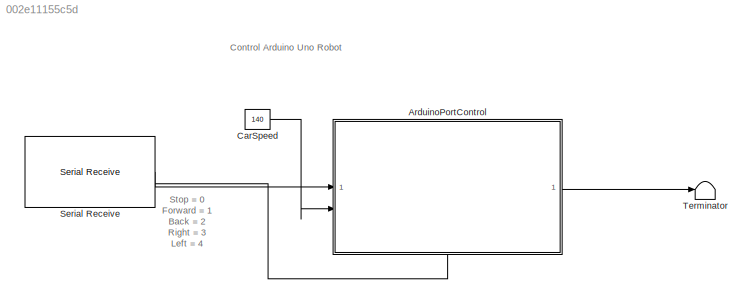
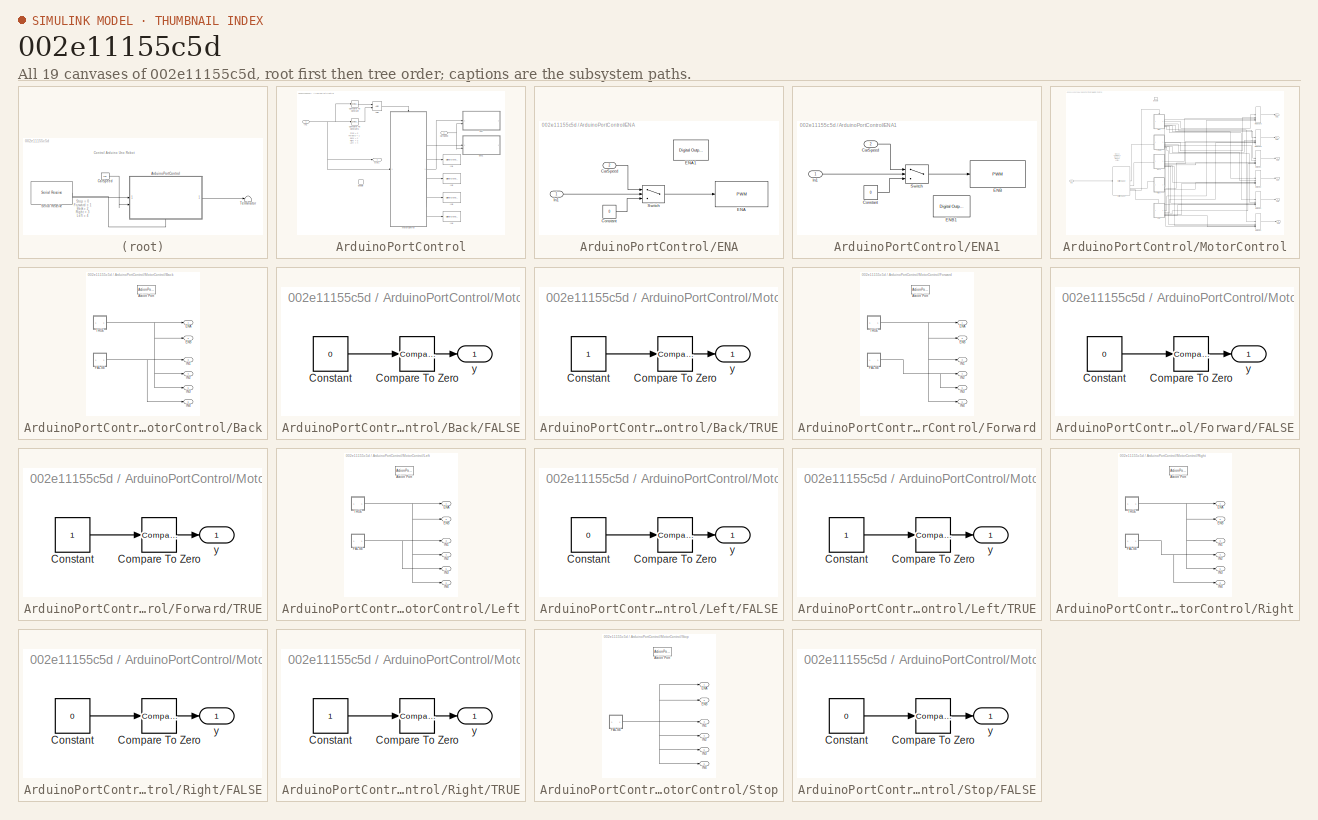
[diagram: thumbnail index - all 19 canvases of the model, root first then tree order]
MODEL slx_002e11155c5d
KIND model
CONFIG AbsTol = auto
CONFIG EnableMultiTasking = on
CONFIG FixedStep = auto
CONFIG MaxStep = auto
CONFIG MinStep = auto
CONFIG RelTol = 1e-3
CONFIG SampleTimeConstraint = Unconstrained
CONFIG SolverName = ode45
CONFIG StartTime = 0.0
CONFIG StopTime = 10.0
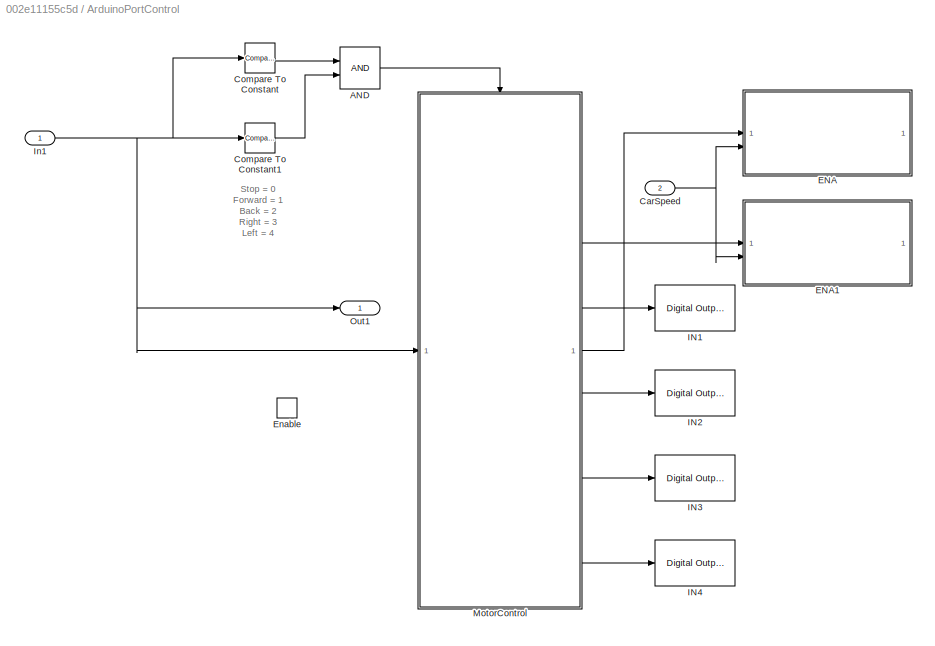
BLOCK [SubSystem] ArduinoPortControl
  NameLocation = top
BLOCK [Logic] ArduinoPortControl/AND
  AllPortsSameDT = off
  IconShape = distinctive
  OutDataTypeStr = boolean
BLOCK [Inport] ArduinoPortControl/CarSpeed
  Port = 2
BLOCK [Reference] ArduinoPortControl/Compare To Constant  REF=simulink/Logic and Bit
Operations/Compare
To Constant
  SourceBlock = simulink/Logic and Bit\nOperations/Compare\nTo Constant
  SourceType = Compare To Constant
BLOCK [Reference] ArduinoPortControl/Compare To Constant1  REF=simulink/Logic and Bit
Operations/Compare
To Constant
  SourceBlock = simulink/Logic and Bit\nOperations/Compare\nTo Constant
  SourceType = Compare To Constant
BLOCK [SubSystem] ArduinoPortControl/ENA
  TreatAsAtomicUnit = on
BLOCK [Inport] ArduinoPortControl/ENA/CarSpeed
  Port = 2
BLOCK [Constant] ArduinoPortControl/ENA/Constant
  Value = 0
BLOCK [Reference] ArduinoPortControl/ENA/ENA  REF=arduinolib/PWM
  SourceBlock = arduinolib/PWM
  SourceType = Arduino PWM
BLOCK [Reference] ArduinoPortControl/ENA/ENA1  REF=arduinolib/Digital Output
  Commented = on
  SourceBlock = arduinolib/Digital Output
  SourceType = Arduino Digital Output
BLOCK [Inport] ArduinoPortControl/ENA/In1
BLOCK [Switch] ArduinoPortControl/ENA/Switch
  Criteria = u2 > Threshold
  InputSameDT = off
  SaturateOnIntegerOverflow = off
BLOCK [SubSystem] ArduinoPortControl/ENA1
  TreatAsAtomicUnit = on
BLOCK [Inport] ArduinoPortControl/ENA1/CarSpeed
  Port = 2
BLOCK [Constant] ArduinoPortControl/ENA1/Constant
  Value = 0
BLOCK [Reference] ArduinoPortControl/ENA1/ENB  REF=arduinolib/PWM
  SourceBlock = arduinolib/PWM
  SourceType = Arduino PWM
BLOCK [Reference] ArduinoPortControl/ENA1/ENB1  REF=arduinolib/Digital Output
  Commented = on
  SourceBlock = arduinolib/Digital Output
  SourceType = Arduino Digital Output
BLOCK [Inport] ArduinoPortControl/ENA1/In1
BLOCK [Switch] ArduinoPortControl/ENA1/Switch
  Criteria = u2 > Threshold
  InputSameDT = off
  SaturateOnIntegerOverflow = off
BLOCK [EnablePort] ArduinoPortControl/Enable
BLOCK [Reference] ArduinoPortControl/IN1  REF=arduinolib/Digital Output
  SourceBlock = arduinolib/Digital Output
  SourceType = Arduino Digital Output
BLOCK [Reference] ArduinoPortControl/IN2  REF=arduinolib/Digital Output
  SourceBlock = arduinolib/Digital Output
  SourceType = Arduino Digital Output
BLOCK [Reference] ArduinoPortControl/IN3  REF=arduinolib/Digital Output
  SourceBlock = arduinolib/Digital Output
  SourceType = Arduino Digital Output
BLOCK [Reference] ArduinoPortControl/IN4  REF=arduinolib/Digital Output
  SourceBlock = arduinolib/Digital Output
  SourceType = Arduino Digital Output
BLOCK [Inport] ArduinoPortControl/In1
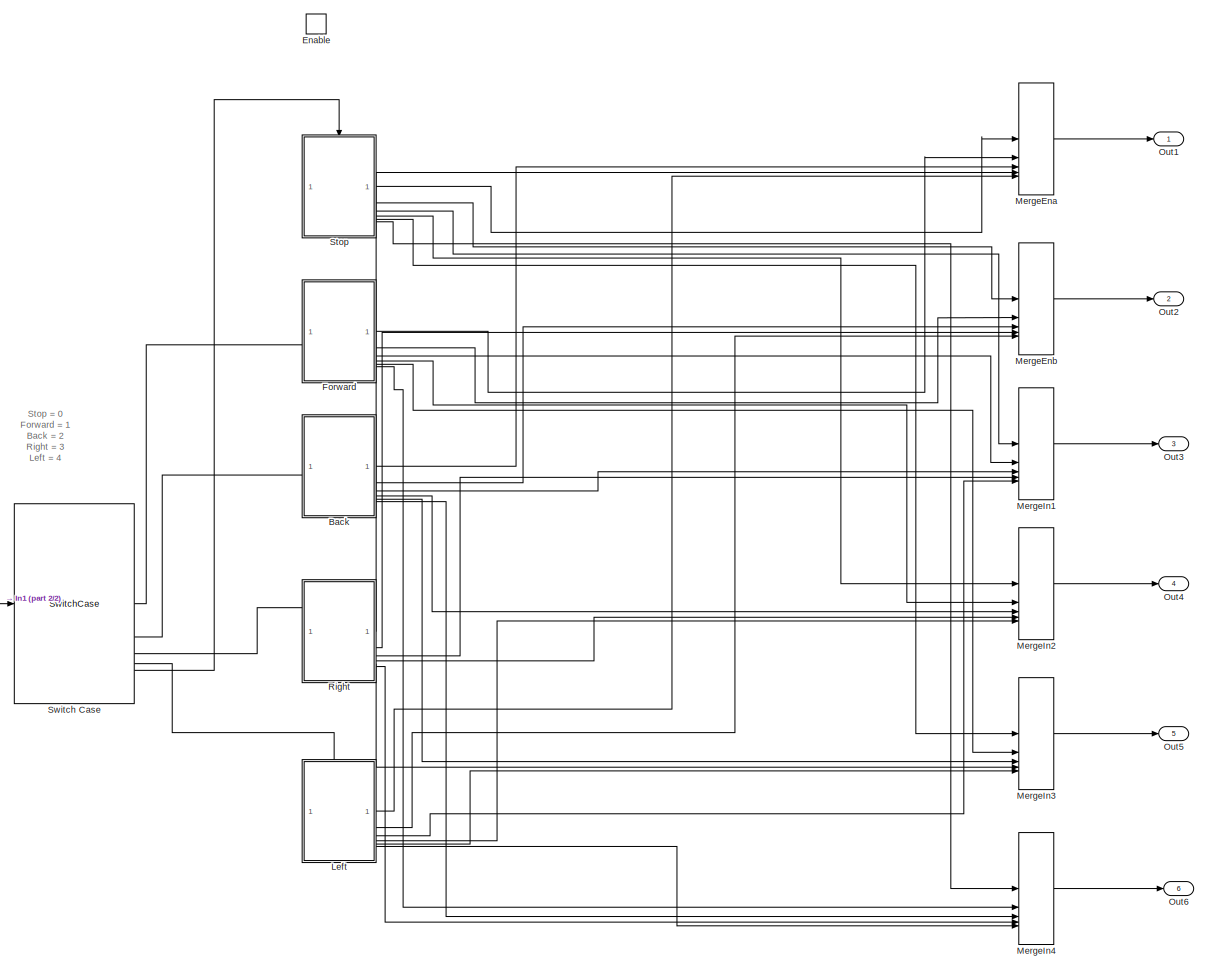
[diagram: ArduinoPortControl/MotorControl - part 1/2, most of the canvas]
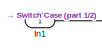
[diagram: ArduinoPortControl/MotorControl - part 2/2, middle left region]
BLOCK [SubSystem] ArduinoPortControl/MotorControl
BLOCK [SubSystem] ArduinoPortControl/MotorControl/Back
BLOCK [ActionPort] ArduinoPortControl/MotorControl/Back/Action Port
  ActionPortLabel = case [ 2 ]:
BLOCK [Outport] ArduinoPortControl/MotorControl/Back/ENA
BLOCK [Outport] ArduinoPortControl/MotorControl/Back/ENB
  Port = 2
BLOCK [SubSystem] ArduinoPortControl/MotorControl/Back/FALSE
BLOCK [Reference] ArduinoPortControl/MotorControl/Back/FALSE/Compare To Zero  REF=simulink/Logic and Bit
Operations/Compare
To Zero
  SourceBlock = simulink/Logic and Bit\nOperations/Compare\nTo Zero
  SourceType = Compare To Zero
BLOCK [Constant] ArduinoPortControl/MotorControl/Back/FALSE/Constant
  Value = 0
BLOCK [Outport] ArduinoPortControl/MotorControl/Back/FALSE/y
BLOCK [Outport] ArduinoPortControl/MotorControl/Back/IN1
  Port = 3
BLOCK [Outport] ArduinoPortControl/MotorControl/Back/IN2
  Port = 4
BLOCK [Outport] ArduinoPortControl/MotorControl/Back/IN3
  Port = 5
BLOCK [Outport] ArduinoPortControl/MotorControl/Back/IN4
  Port = 6
BLOCK [SubSystem] ArduinoPortControl/MotorControl/Back/TRUE
BLOCK [Reference] ArduinoPortControl/MotorControl/Back/TRUE/Compare To Zero  REF=simulink/Logic and Bit
Operations/Compare
To Zero
  SourceBlock = simulink/Logic and Bit\nOperations/Compare\nTo Zero
  SourceType = Compare To Zero
BLOCK [Constant] ArduinoPortControl/MotorControl/Back/TRUE/Constant
BLOCK [Outport] ArduinoPortControl/MotorControl/Back/TRUE/y
BLOCK [EnablePort] ArduinoPortControl/MotorControl/Enable
BLOCK [SubSystem] ArduinoPortControl/MotorControl/Forward
BLOCK [ActionPort] ArduinoPortControl/MotorControl/Forward/Action Port
  ActionPortLabel = case [ 1 ]:
BLOCK [Outport] ArduinoPortControl/MotorControl/Forward/ENA
BLOCK [Outport] ArduinoPortControl/MotorControl/Forward/ENB
  Port = 2
BLOCK [SubSystem] ArduinoPortControl/MotorControl/Forward/FALSE
BLOCK [Reference] ArduinoPortControl/MotorControl/Forward/FALSE/Compare To Zero  REF=simulink/Logic and Bit
Operations/Compare
To Zero
  SourceBlock = simulink/Logic and Bit\nOperations/Compare\nTo Zero
  SourceType = Compare To Zero
BLOCK [Constant] ArduinoPortControl/MotorControl/Forward/FALSE/Constant
  Value = 0
BLOCK [Outport] ArduinoPortControl/MotorControl/Forward/FALSE/y
BLOCK [Outport] ArduinoPortControl/MotorControl/Forward/IN1
  Port = 3
BLOCK [Outport] ArduinoPortControl/MotorControl/Forward/IN2
  Port = 4
BLOCK [Outport] ArduinoPortControl/MotorControl/Forward/IN3
  Port = 5
BLOCK [Outport] ArduinoPortControl/MotorControl/Forward/IN4
  Port = 6
BLOCK [SubSystem] ArduinoPortControl/MotorControl/Forward/TRUE
BLOCK [Reference] ArduinoPortControl/MotorControl/Forward/TRUE/Compare To Zero  REF=simulink/Logic and Bit
Operations/Compare
To Zero
  SourceBlock = simulink/Logic and Bit\nOperations/Compare\nTo Zero
  SourceType = Compare To Zero
BLOCK [Constant] ArduinoPortControl/MotorControl/Forward/TRUE/Constant
BLOCK [Outport] ArduinoPortControl/MotorControl/Forward/TRUE/y
BLOCK [Inport] ArduinoPortControl/MotorControl/In1
BLOCK [SubSystem] ArduinoPortControl/MotorControl/Left
BLOCK [ActionPort] ArduinoPortControl/MotorControl/Left/Action Port
  ActionPortLabel = case [ 4 ]:
BLOCK [Outport] ArduinoPortControl/MotorControl/Left/ENA
BLOCK [Outport] ArduinoPortControl/MotorControl/Left/ENB
  Port = 2
BLOCK [SubSystem] ArduinoPortControl/MotorControl/Left/FALSE
BLOCK [Reference] ArduinoPortControl/MotorControl/Left/FALSE/Compare To Zero  REF=simulink/Logic and Bit
Operations/Compare
To Zero
  SourceBlock = simulink/Logic and Bit\nOperations/Compare\nTo Zero
  SourceType = Compare To Zero
BLOCK [Constant] ArduinoPortControl/MotorControl/Left/FALSE/Constant
  Value = 0
BLOCK [Outport] ArduinoPortControl/MotorControl/Left/FALSE/y
BLOCK [Outport] ArduinoPortControl/MotorControl/Left/IN1
  Port = 3
BLOCK [Outport] ArduinoPortControl/MotorControl/Left/IN2
  Port = 4
BLOCK [Outport] ArduinoPortControl/MotorControl/Left/IN3
  Port = 5
BLOCK [Outport] ArduinoPortControl/MotorControl/Left/IN4
  Port = 6
BLOCK [SubSystem] ArduinoPortControl/MotorControl/Left/TRUE
BLOCK [Reference] ArduinoPortControl/MotorControl/Left/TRUE/Compare To Zero  REF=simulink/Logic and Bit
Operations/Compare
To Zero
  SourceBlock = simulink/Logic and Bit\nOperations/Compare\nTo Zero
  SourceType = Compare To Zero
BLOCK [Constant] ArduinoPortControl/MotorControl/Left/TRUE/Constant
BLOCK [Outport] ArduinoPortControl/MotorControl/Left/TRUE/y
BLOCK [Merge] ArduinoPortControl/MotorControl/MergeEna
  Inputs = 5
BLOCK [Merge] ArduinoPortControl/MotorControl/MergeEnb
  Inputs = 5
BLOCK [Merge] ArduinoPortControl/MotorControl/MergeIn1
  Inputs = 5
BLOCK [Merge] ArduinoPortControl/MotorControl/MergeIn2
  Inputs = 5
BLOCK [Merge] ArduinoPortControl/MotorControl/MergeIn3
  Inputs = 5
BLOCK [Merge] ArduinoPortControl/MotorControl/MergeIn4
  Inputs = 5
BLOCK [Outport] ArduinoPortControl/MotorControl/Out1
BLOCK [Outport] ArduinoPortControl/MotorControl/Out2
  Port = 2
BLOCK [Outport] ArduinoPortControl/MotorControl/Out3
  Port = 3
BLOCK [Outport] ArduinoPortControl/MotorControl/Out4
  Port = 4
BLOCK [Outport] ArduinoPortControl/MotorControl/Out5
  Port = 5
BLOCK [Outport] ArduinoPortControl/MotorControl/Out6
  Port = 6
BLOCK [SubSystem] ArduinoPortControl/MotorControl/Right
BLOCK [ActionPort] ArduinoPortControl/MotorControl/Right/Action Port
  ActionPortLabel = case [ 3 ]:
BLOCK [Outport] ArduinoPortControl/MotorControl/Right/ENA
BLOCK [Outport] ArduinoPortControl/MotorControl/Right/ENB
  Port = 2
BLOCK [SubSystem] ArduinoPortControl/MotorControl/Right/FALSE
BLOCK [Reference] ArduinoPortControl/MotorControl/Right/FALSE/Compare To Zero  REF=simulink/Logic and Bit
Operations/Compare
To Zero
  SourceBlock = simulink/Logic and Bit\nOperations/Compare\nTo Zero
  SourceType = Compare To Zero
BLOCK [Constant] ArduinoPortControl/MotorControl/Right/FALSE/Constant
  Value = 0
BLOCK [Outport] ArduinoPortControl/MotorControl/Right/FALSE/y
BLOCK [Outport] ArduinoPortControl/MotorControl/Right/IN1
  Port = 3
BLOCK [Outport] ArduinoPortControl/MotorControl/Right/IN2
  Port = 4
BLOCK [Outport] ArduinoPortControl/MotorControl/Right/IN3
  Port = 5
BLOCK [Outport] ArduinoPortControl/MotorControl/Right/IN4
  Port = 6
BLOCK [SubSystem] ArduinoPortControl/MotorControl/Right/TRUE
BLOCK [Reference] ArduinoPortControl/MotorControl/Right/TRUE/Compare To Zero  REF=simulink/Logic and Bit
Operations/Compare
To Zero
  SourceBlock = simulink/Logic and Bit\nOperations/Compare\nTo Zero
  SourceType = Compare To Zero
BLOCK [Constant] ArduinoPortControl/MotorControl/Right/TRUE/Constant
BLOCK [Outport] ArduinoPortControl/MotorControl/Right/TRUE/y
BLOCK [SubSystem] ArduinoPortControl/MotorControl/Stop
BLOCK [ActionPort] ArduinoPortControl/MotorControl/Stop/Action Port
  ActionPortLabel = default:
BLOCK [Outport] ArduinoPortControl/MotorControl/Stop/ENA
BLOCK [Outport] ArduinoPortControl/MotorControl/Stop/ENB
  Port = 2
BLOCK [SubSystem] ArduinoPortControl/MotorControl/Stop/FALSE
BLOCK [Reference] ArduinoPortControl/MotorControl/Stop/FALSE/Compare To Zero  REF=simulink/Logic and Bit
Operations/Compare
To Zero
  SourceBlock = simulink/Logic and Bit\nOperations/Compare\nTo Zero
  SourceType = Compare To Zero
BLOCK [Constant] ArduinoPortControl/MotorControl/Stop/FALSE/Constant
  Value = 0
BLOCK [Outport] ArduinoPortControl/MotorControl/Stop/FALSE/y
BLOCK [Outport] ArduinoPortControl/MotorControl/Stop/IN1
  Port = 3
BLOCK [Outport] ArduinoPortControl/MotorControl/Stop/IN2
  Port = 4
BLOCK [Outport] ArduinoPortControl/MotorControl/Stop/IN3
  Port = 5
BLOCK [Outport] ArduinoPortControl/MotorControl/Stop/IN4
  Port = 6
BLOCK [SwitchCase] ArduinoPortControl/MotorControl/Switch Case
  CaseConditions = {1, 2, 3, 4}
BLOCK [Outport] ArduinoPortControl/Out1
  VectorParamsAs1DForOutWhenUnconnected = off
BLOCK [Constant] CarSpeed
  Value = 140
BLOCK [Reference] Serial Receive  REF=arduinolib/Serial Receive
  SourceBlock = arduinolib/Serial Receive
  SourceType = Arduino Serial Receive
BLOCK [Terminator] Terminator
ANNOTATION (root): Stop = 0 Forward = 1 Back = 2 Right = 3 Left = 4
ANNOTATION (root): Control Arduino Uno Robot
ANNOTATION ArduinoPortControl: Stop = 0 Forward = 1 Back = 2 Right = 3 Left = 4
ANNOTATION ArduinoPortControl/MotorControl: Stop = 0 Forward = 1 Back = 2 Right = 3 Left = 4
LINE ArduinoPortControl/AND:1 -> ArduinoPortControl/MotorControl:enable
NET ArduinoPortControl/CarSpeed:1 -> ArduinoPortControl/ENA1:2, ArduinoPortControl/ENA:2
LINE ArduinoPortControl/Compare To Constant1:1 -> ArduinoPortControl/AND:2
LINE ArduinoPortControl/Compare To Constant:1 -> ArduinoPortControl/AND:1
LINE ArduinoPortControl/ENA/CarSpeed:1 -> ArduinoPortControl/ENA/Switch:1
LINE ArduinoPortControl/ENA/Constant:1 -> ArduinoPortControl/ENA/Switch:3
LINE ArduinoPortControl/ENA/In1:1 -> ArduinoPortControl/ENA/Switch:2
LINE ArduinoPortControl/ENA/Switch:1 -> ArduinoPortControl/ENA/ENA:1
LINE ArduinoPortControl/ENA1/CarSpeed:1 -> ArduinoPortControl/ENA1/Switch:1
LINE ArduinoPortControl/ENA1/Constant:1 -> ArduinoPortControl/ENA1/Switch:3
LINE ArduinoPortControl/ENA1/In1:1 -> ArduinoPortControl/ENA1/Switch:2
LINE ArduinoPortControl/ENA1/Switch:1 -> ArduinoPortControl/ENA1/ENB:1
NET ArduinoPortControl/In1:1 -> ArduinoPortControl/Compare To Constant1:1, ArduinoPortControl/Compare To Constant:1, ArduinoPortControl/MotorControl:1, ArduinoPortControl/Out1:1
LINE ArduinoPortControl/MotorControl/Back/FALSE/Compare To Zero:1 -> ArduinoPortControl/MotorControl/Back/FALSE/y:1
LINE ArduinoPortControl/MotorControl/Back/FALSE/Constant:1 -> ArduinoPortControl/MotorControl/Back/FALSE/Compare To Zero:1
NET ArduinoPortControl/MotorControl/Back/FALSE:1 -> ArduinoPortControl/MotorControl/Back/IN1:1, ArduinoPortControl/MotorControl/Back/IN4:1
LINE ArduinoPortControl/MotorControl/Back/TRUE/Compare To Zero:1 -> ArduinoPortControl/MotorControl/Back/TRUE/y:1
LINE ArduinoPortControl/MotorControl/Back/TRUE/Constant:1 -> ArduinoPortControl/MotorControl/Back/TRUE/Compare To Zero:1
NET ArduinoPortControl/MotorControl/Back/TRUE:1 -> ArduinoPortControl/MotorControl/Back/ENA:1, ArduinoPortControl/MotorControl/Back/ENB:1, ArduinoPortControl/MotorControl/Back/IN2:1, ArduinoPortControl/MotorControl/Back/IN3:1
LINE ArduinoPortControl/MotorControl/Back:1 -> ArduinoPortControl/MotorControl/MergeEna:3
LINE ArduinoPortControl/MotorControl/Back:2 -> ArduinoPortControl/MotorControl/MergeEnb:3
LINE ArduinoPortControl/MotorControl/Back:3 -> ArduinoPortControl/MotorControl/MergeIn1:3
LINE ArduinoPortControl/MotorControl/Back:4 -> ArduinoPortControl/MotorControl/MergeIn2:3
LINE ArduinoPortControl/MotorControl/Back:5 -> ArduinoPortControl/MotorControl/MergeIn3:3
LINE ArduinoPortControl/MotorControl/Back:6 -> ArduinoPortControl/MotorControl/MergeIn4:3
LINE ArduinoPortControl/MotorControl/Forward/FALSE/Compare To Zero:1 -> ArduinoPortControl/MotorControl/Forward/FALSE/y:1
LINE ArduinoPortControl/MotorControl/Forward/FALSE/Constant:1 -> ArduinoPortControl/MotorControl/Forward/FALSE/Compare To Zero:1
NET ArduinoPortControl/MotorControl/Forward/FALSE:1 -> ArduinoPortControl/MotorControl/Forward/IN2:1, ArduinoPortControl/MotorControl/Forward/IN3:1
LINE ArduinoPortControl/MotorControl/Forward/TRUE/Compare To Zero:1 -> ArduinoPortControl/MotorControl/Forward/TRUE/y:1
LINE ArduinoPortControl/MotorControl/Forward/TRUE/Constant:1 -> ArduinoPortControl/MotorControl/Forward/TRUE/Compare To Zero:1
NET ArduinoPortControl/MotorControl/Forward/TRUE:1 -> ArduinoPortControl/MotorControl/Forward/ENA:1, ArduinoPortControl/MotorControl/Forward/ENB:1, ArduinoPortControl/MotorControl/Forward/IN1:1, ArduinoPortControl/MotorControl/Forward/IN4:1
LINE ArduinoPortControl/MotorControl/Forward:1 -> ArduinoPortControl/MotorControl/MergeEna:2
LINE ArduinoPortControl/MotorControl/Forward:2 -> ArduinoPortControl/MotorControl/MergeEnb:2
LINE ArduinoPortControl/MotorControl/Forward:3 -> ArduinoPortControl/MotorControl/MergeIn1:2
LINE ArduinoPortControl/MotorControl/Forward:4 -> ArduinoPortControl/MotorControl/MergeIn2:2
LINE ArduinoPortControl/MotorControl/Forward:5 -> ArduinoPortControl/MotorControl/MergeIn3:2
LINE ArduinoPortControl/MotorControl/Forward:6 -> ArduinoPortControl/MotorControl/MergeIn4:2
LINE ArduinoPortControl/MotorControl/In1:1 -> ArduinoPortControl/MotorControl/Switch Case:1
LINE ArduinoPortControl/MotorControl/Left/FALSE/Compare To Zero:1 -> ArduinoPortControl/MotorControl/Left/FALSE/y:1
LINE ArduinoPortControl/MotorControl/Left/FALSE/Constant:1 -> ArduinoPortControl/MotorControl/Left/FALSE/Compare To Zero:1
NET ArduinoPortControl/MotorControl/Left/FALSE:1 -> ArduinoPortControl/MotorControl/Left/IN1:1, ArduinoPortControl/MotorControl/Left/IN3:1
LINE ArduinoPortControl/MotorControl/Left/TRUE/Compare To Zero:1 -> ArduinoPortControl/MotorControl/Left/TRUE/y:1
LINE ArduinoPortControl/MotorControl/Left/TRUE/Constant:1 -> ArduinoPortControl/MotorControl/Left/TRUE/Compare To Zero:1
NET ArduinoPortControl/MotorControl/Left/TRUE:1 -> ArduinoPortControl/MotorControl/Left/ENA:1, ArduinoPortControl/MotorControl/Left/ENB:1, ArduinoPortControl/MotorControl/Left/IN2:1, ArduinoPortControl/MotorControl/Left/IN4:1
LINE ArduinoPortControl/MotorControl/Left:1 -> ArduinoPortControl/MotorControl/MergeEna:5
LINE ArduinoPortControl/MotorControl/Left:2 -> ArduinoPortControl/MotorControl/MergeEnb:5
LINE ArduinoPortControl/MotorControl/Left:3 -> ArduinoPortControl/MotorControl/MergeIn1:5
LINE ArduinoPortControl/MotorControl/Left:4 -> ArduinoPortControl/MotorControl/MergeIn2:5
LINE ArduinoPortControl/MotorControl/Left:5 -> ArduinoPortControl/MotorControl/MergeIn3:5
LINE ArduinoPortControl/MotorControl/Left:6 -> ArduinoPortControl/MotorControl/MergeIn4:5
LINE ArduinoPortControl/MotorControl/MergeEna:1 -> ArduinoPortControl/MotorControl/Out1:1
LINE ArduinoPortControl/MotorControl/MergeEnb:1 -> ArduinoPortControl/MotorControl/Out2:1
LINE ArduinoPortControl/MotorControl/MergeIn1:1 -> ArduinoPortControl/MotorControl/Out3:1
LINE ArduinoPortControl/MotorControl/MergeIn2:1 -> ArduinoPortControl/MotorControl/Out4:1
LINE ArduinoPortControl/MotorControl/MergeIn3:1 -> ArduinoPortControl/MotorControl/Out5:1
LINE ArduinoPortControl/MotorControl/MergeIn4:1 -> ArduinoPortControl/MotorControl/Out6:1
LINE ArduinoPortControl/MotorControl/Right/FALSE/Compare To Zero:1 -> ArduinoPortControl/MotorControl/Right/FALSE/y:1
LINE ArduinoPortControl/MotorControl/Right/FALSE/Constant:1 -> ArduinoPortControl/MotorControl/Right/FALSE/Compare To Zero:1
NET ArduinoPortControl/MotorControl/Right/FALSE:1 -> ArduinoPortControl/MotorControl/Right/IN2:1, ArduinoPortControl/MotorControl/Right/IN4:1
LINE ArduinoPortControl/MotorControl/Right/TRUE/Compare To Zero:1 -> ArduinoPortControl/MotorControl/Right/TRUE/y:1
LINE ArduinoPortControl/MotorControl/Right/TRUE/Constant:1 -> ArduinoPortControl/MotorControl/Right/TRUE/Compare To Zero:1
NET ArduinoPortControl/MotorControl/Right/TRUE:1 -> ArduinoPortControl/MotorControl/Right/ENA:1, ArduinoPortControl/MotorControl/Right/ENB:1, ArduinoPortControl/MotorControl/Right/IN1:1, ArduinoPortControl/MotorControl/Right/IN3:1
LINE ArduinoPortControl/MotorControl/Right:1 -> ArduinoPortControl/MotorControl/MergeEna:4
LINE ArduinoPortControl/MotorControl/Right:2 -> ArduinoPortControl/MotorControl/MergeEnb:4
LINE ArduinoPortControl/MotorControl/Right:3 -> ArduinoPortControl/MotorControl/MergeIn1:4
LINE ArduinoPortControl/MotorControl/Right:4 -> ArduinoPortControl/MotorControl/MergeIn2:4
LINE ArduinoPortControl/MotorControl/Right:5 -> ArduinoPortControl/MotorControl/MergeIn3:4
LINE ArduinoPortControl/MotorControl/Right:6 -> ArduinoPortControl/MotorControl/MergeIn4:4
LINE ArduinoPortControl/MotorControl/Stop/FALSE/Compare To Zero:1 -> ArduinoPortControl/MotorControl/Stop/FALSE/y:1
LINE ArduinoPortControl/MotorControl/Stop/FALSE/Constant:1 -> ArduinoPortControl/MotorControl/Stop/FALSE/Compare To Zero:1
NET ArduinoPortControl/MotorControl/Stop/FALSE:1 -> ArduinoPortControl/MotorControl/Stop/ENA:1, ArduinoPortControl/MotorControl/Stop/ENB:1, ArduinoPortControl/MotorControl/Stop/IN1:1, ArduinoPortControl/MotorControl/Stop/IN2:1, ArduinoPortControl/MotorControl/Stop/IN3:1, ArduinoPortControl/MotorControl/Stop/IN4:1
LINE ArduinoPortControl/MotorControl/Stop:1 -> ArduinoPortControl/MotorControl/MergeEna:1
LINE ArduinoPortControl/MotorControl/Stop:2 -> ArduinoPortControl/MotorControl/MergeEnb:1
LINE ArduinoPortControl/MotorControl/Stop:3 -> ArduinoPortControl/MotorControl/MergeIn1:1
LINE ArduinoPortControl/MotorControl/Stop:4 -> ArduinoPortControl/MotorControl/MergeIn2:1
LINE ArduinoPortControl/MotorControl/Stop:5 -> ArduinoPortControl/MotorControl/MergeIn3:1
LINE ArduinoPortControl/MotorControl/Stop:6 -> ArduinoPortControl/MotorControl/MergeIn4:1
LINE ArduinoPortControl/MotorControl/Switch Case:1 -> ArduinoPortControl/MotorControl/Forward:ifaction
LINE ArduinoPortControl/MotorControl/Switch Case:2 -> ArduinoPortControl/MotorControl/Back:ifaction
LINE ArduinoPortControl/MotorControl/Switch Case:3 -> ArduinoPortControl/MotorControl/Right:ifaction
LINE ArduinoPortControl/MotorControl/Switch Case:4 -> ArduinoPortControl/MotorControl/Left:ifaction
LINE ArduinoPortControl/MotorControl/Switch Case:5 -> ArduinoPortControl/MotorControl/Stop:ifaction
LINE ArduinoPortControl/MotorControl:1 -> ArduinoPortControl/ENA:1
LINE ArduinoPortControl/MotorControl:2 -> ArduinoPortControl/ENA1:1
LINE ArduinoPortControl/MotorControl:3 -> ArduinoPortControl/IN1:1
LINE ArduinoPortControl/MotorControl:4 -> ArduinoPortControl/IN2:1
LINE ArduinoPortControl/MotorControl:5 -> ArduinoPortControl/IN3:1
LINE ArduinoPortControl/MotorControl:6 -> ArduinoPortControl/IN4:1
LINE ArduinoPortControl:1 -> Terminator:1
LINE CarSpeed:1 -> ArduinoPortControl:2
LINE Serial Receive:1 -> ArduinoPortControl:1
LINE Serial Receive:2 -> ArduinoPortControl:enable
note: NET lines group one-source signal fan-out (src -> all destinations, sorted); 1:1 wires keep LINE
